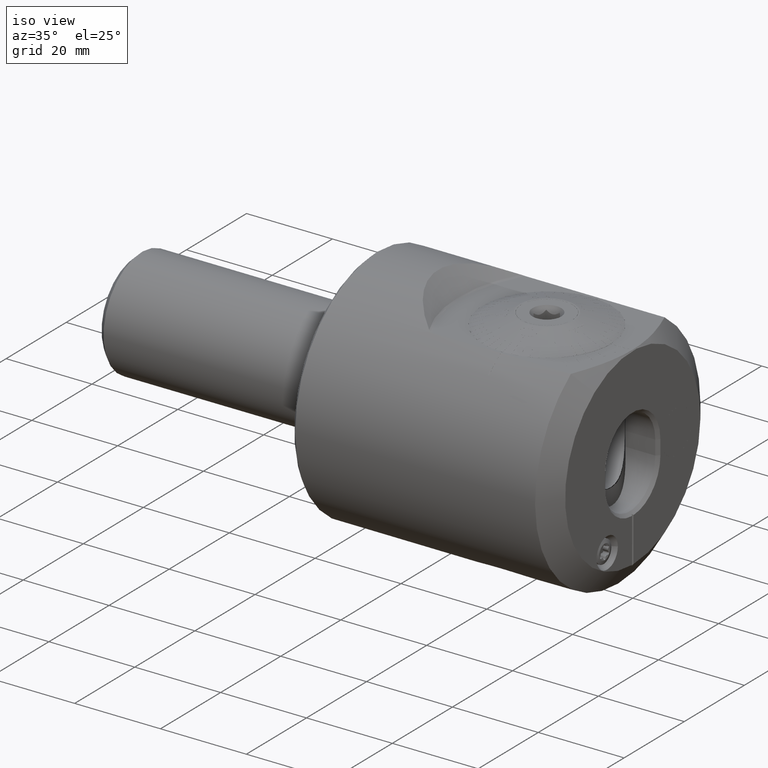
[diagram: clean part render]
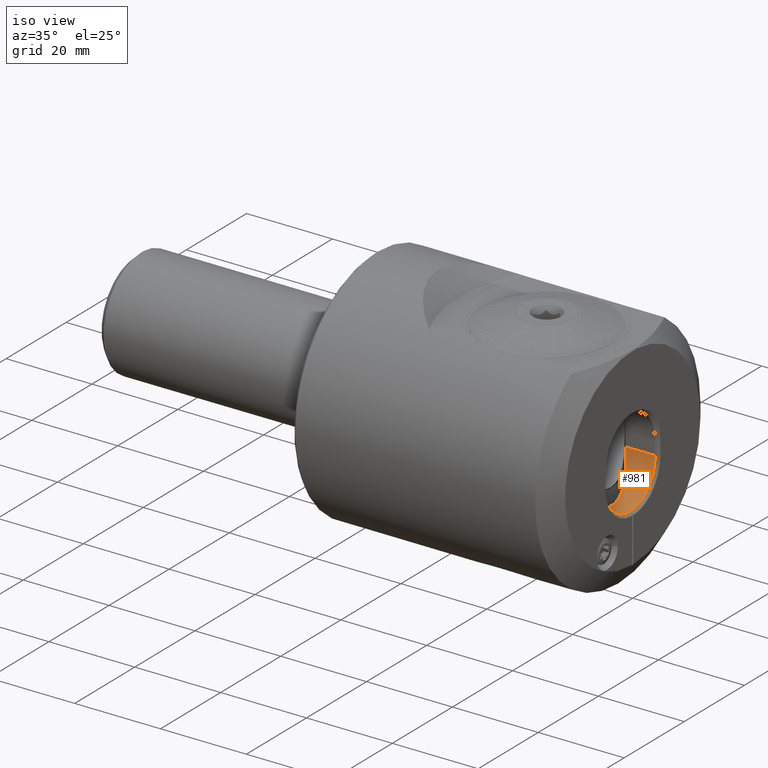
[diagram: same view with one face highlighted and labeled with its STEP entity id]
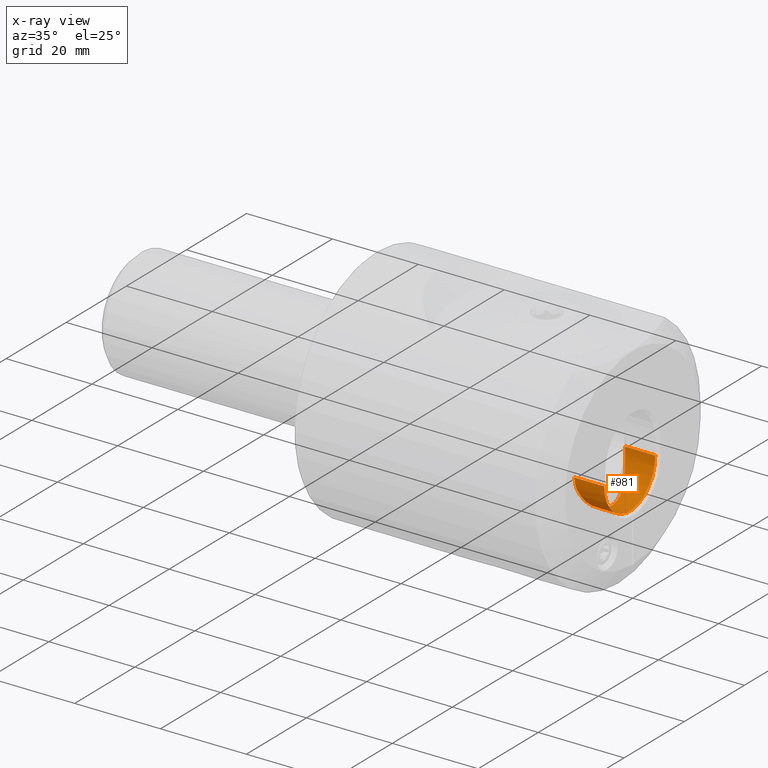
[diagram: x-ray of the same camera — body ghosted, the highlighted face saturated]
A machine part, iso view. The second image highlights one B-rep face of the part: STEP entity #981.
The next image is the same camera in x-ray: the body ghosted, the highlighted face saturated — about 0% of this face is hidden behind the body in this view.
In plain terms, the highlighted cylindrical surface (partial cylindrical patch) has radius 8.5 mm, axis along (1, 0, 0).
Its self-contained STEP definition (entity closure, byte-faithful):
#185 = CYLINDRICAL_SURFACE ( 'NONE', #19414, 8.500000000000000000 ) ;
#981 = ADVANCED_FACE ( 'NONE', ( #3211 ), #185, .F. ) ;
#1500 = CARTESIAN_POINT ( 'NONE',  ( 53.40117075658710600, 6.747549463405488400, -8.198351975443470600 ) ) ;
#1585 = CARTESIAN_POINT ( 'NONE',  ( 54.74059279892856000, 2.791099728862466400, -11.03367945595449000 ) ) ;
#1687 = CARTESIAN_POINT ( 'NONE',  ( 53.57206176861593900, -6.390315970369961500, -8.611412417995151000 ) ) ;
#1771 = CARTESIAN_POINT ( 'NONE',  ( 52.72683878815927700, -7.939979636275679400, -6.046715393019435500 ) ) ;
#1939 = CARTESIAN_POINT ( 'NONE',  ( 55.00027206658472100, -0.2706025040285277600, -11.50048011799519200 ) ) ;
#2819 = DIRECTION ( 'NONE',  ( 0.0000000000000000000, 0.0000000000000000000, -1.000000000000000000 ) ) ;
#3211 = FACE_OUTER_BOUND ( 'NONE', #18328, .T. ) ;
#3390 = CARTESIAN_POINT ( 'NONE',  ( 53.82323206110127200, 5.827685249283378600, -9.193670678484013000 ) ) ;
#3669 = CARTESIAN_POINT ( 'NONE',  ( 54.99225311586421600, -0.5594120682533374500, -11.48635356485625200 ) ) ;
#3760 = CARTESIAN_POINT ( 'NONE',  ( 54.51748811811901900, -3.810697035712705000, -10.61846142714232300 ) ) ;
#5476 = CARTESIAN_POINT ( 'NONE',  ( 52.35920709430826000, 8.500000000000007100, -3.575560511615871300 ) ) ;
#5775 = ORIENTED_EDGE ( 'NONE', *, *, #24549, .T. ) ;
#5841 = CARTESIAN_POINT ( 'NONE',  ( 54.87199555768153700, 1.975100448569495400, -11.27214813610329500 ) ) ;
#5929 = CARTESIAN_POINT ( 'NONE',  ( 54.83552870669618800, -2.232003087667064900, -11.20656592130414000 ) ) ;
#6027 = CARTESIAN_POINT ( 'NONE',  ( 54.99943430834281300, 0.5852534294682921700, -11.49900171960026700 ) ) ;
#6288 = VECTOR ( 'NONE', #24033, 1000.000000000000000 ) ;
#6453 = VECTOR ( 'NONE', #27130, 1000.000000000000000 ) ;
#6645 = VERTEX_POINT ( 'NONE', #22135 ) ;
#7045 = CARTESIAN_POINT ( 'NONE',  ( 4.999999999999997300, -8.499999999999992900, -3.000000000000001300 ) ) ;
#8035 = CARTESIAN_POINT ( 'NONE',  ( 54.37804569679813900, 4.301358800208545200, -10.35182497924006000 ) ) ;
#8319 = CARTESIAN_POINT ( 'NONE',  ( 54.69151914056685400, -3.037924230751477300, -10.94349469515302600 ) ) ;
#8410 = CARTESIAN_POINT ( 'NONE',  ( 54.96644850501578400, 1.146522457375754400, -11.44116772283548800 ) ) ;
#9262 = DIRECTION ( 'NONE',  ( 1.000000000000000000, -0.0000000000000000000, -0.0000000000000000000 ) ) ;
#9687 = B_SPLINE_CURVE_WITH_KNOTS ( 'NONE', 3,
 ( #25078, #5476, #22685, #12169, #9925, #27153, #14328, #1500, #11998, #3390, #18433, #14882, #14519, #8035, #18694, #21228, #1585, #14609, #5841, #8410, #6027, #1939, #3669, #10292, #20867, #20959, #5929, #25250, #8319, #3760, #27599, #16749, #25442, #21138, #12454, #12641, #1687, #23134, #27425, #18970, #27511, #1771, #18790, #23302, #14795, #27332, #16841, #19060 ),
 .UNSPECIFIED., .F., .F.,
 ( 4, 2, 2, 2, 2, 2, 2, 2, 2, 2, 2, 2, 2, 2, 2, 2, 2, 2, 2, 2, 2, 2, 2, 4 ),
 ( 0.0000000000000000000, 0.001698183781830400600, 0.003396367563660801200, 0.005094551345491201700, 0.006792735127321605800, 0.007641827018236806500, 0.008490918909152007200, 0.01018910269098240700, 0.01103819458189760800, 0.01188728647281281000, 0.01358547025464321200, 0.01443456214555841100, 0.01528365403647361300, 0.01613274592738881200, 0.01698183781830401400, 0.01868002160013441600, 0.01952911349104961500, 0.02037820538196481400, 0.02122729727288001600, 0.02207638916379521500, 0.02377457294562562700, 0.02462366483654083700, 0.02547275672745604600, 0.02717094050928646500 ),
 .UNSPECIFIED. ) ;
#9925 = CARTESIAN_POINT ( 'NONE',  ( 52.65920938075344500, 8.050320160795992700, -5.783623207497343300 ) ) ;
#10292 = CARTESIAN_POINT ( 'NONE',  ( 54.96034894219909000, -1.126301416091632500, -11.42986262106126300 ) ) ;
#10519 = LINE ( 'NONE', #18498, #6453 ) ;
#10890 = ORIENTED_EDGE ( 'NONE', *, *, #16392, .F. ) ;
#11393 = CARTESIAN_POINT ( 'NONE',  ( 52.35920709430826700, 8.500000000000003600, -2.999999999999999600 ) ) ;
#11998 = CARTESIAN_POINT ( 'NONE',  ( 53.57169528568422800, 6.401853402853767200, -8.617843034588990000 ) ) ;
#12169 = CARTESIAN_POINT ( 'NONE',  ( 52.54867036101149600, 8.218814333559571100, -5.239866988957373900 ) ) ;
#12276 = CARTESIAN_POINT ( 'NONE',  ( 59.30000000000001100, 8.500000000000003600, -2.999999999999999600 ) ) ;
#12454 = CARTESIAN_POINT ( 'NONE',  ( 53.82439980018880700, -5.824921823764406700, -9.196276958555564800 ) ) ;
#12641 = CARTESIAN_POINT ( 'NONE',  ( 53.65661865817591500, -6.208100427150693400, -8.812318942255736000 ) ) ;
#13477 = EDGE_CURVE ( 'NONE', #6645, #15879, #21075, .T. ) ;
#13622 = ORIENTED_EDGE ( 'NONE', *, *, #13477, .T. ) ;
#13782 = CARTESIAN_POINT ( 'NONE',  ( 59.30000000000001100, -8.499999999999992900, -3.000000000000001300 ) ) ;
#14328 = CARTESIAN_POINT ( 'NONE',  ( 53.07426131540236700, 7.361011646837893900, -7.285766507501034700 ) ) ;
#14519 = CARTESIAN_POINT ( 'NONE',  ( 54.15000870864908200, 4.983445087686981800, -9.891337284691985600 ) ) ;
#14609 = CARTESIAN_POINT ( 'NONE',  ( 54.83282326579745100, 2.250037272113062600, -11.20168126493485300 ) ) ;
#14795 = CARTESIAN_POINT ( 'NONE',  ( 52.51279494682025700, -8.272519485686824900, -4.973725436768694100 ) ) ;
#14882 = CARTESIAN_POINT ( 'NONE',  ( 54.06978624207567900, 5.205022115869932800, -9.725519539574818900 ) ) ;
#15879 = VERTEX_POINT ( 'NONE', #13782 ) ;
#16392 = EDGE_CURVE ( 'NONE', #16637, #25212, #10519, .T. ) ;
#16637 = VERTEX_POINT ( 'NONE', #11393 ) ;
#16749 = CARTESIAN_POINT ( 'NONE',  ( 54.15100158954678000, -4.980677150857754800, -9.893384364525386900 ) ) ;
#16792 = DIRECTION ( 'NONE',  ( 0.0000000000000000000, 0.0000000000000000000, -1.000000000000000000 ) ) ;
#16841 = CARTESIAN_POINT ( 'NONE',  ( 52.35920709430826700, -8.499999999999989300, -3.576236645484122300 ) ) ;
#16896 = ORIENTED_EDGE ( 'NONE', *, *, #17592, .T. ) ;
#17592 = EDGE_CURVE ( 'NONE', #15879, #25212, #27758, .T. ) ;
#18328 = EDGE_LOOP ( 'NONE', ( #13622, #16896, #10890, #5775 ) ) ;
#18433 = CARTESIAN_POINT ( 'NONE',  ( 53.90648443868391100, 5.626795773887625500, -9.376836019756050100 ) ) ;
#18473 = CARTESIAN_POINT ( 'NONE',  ( 59.30000000000001100, 7.347880794884118400E-015, -2.999999999999999600 ) ) ;
#18498 = CARTESIAN_POINT ( 'NONE',  ( 4.999999999999997300, 8.500000000000003600, -2.999999999999999600 ) ) ;
#18694 = CARTESIAN_POINT ( 'NONE',  ( 54.51495838910319200, 3.819697176468659400, -10.61362310211410800 ) ) ;
#18790 = CARTESIAN_POINT ( 'NONE',  ( 52.66665209392010600, -8.035278428674990500, -5.786224232829446200 ) ) ;
#18970 = CARTESIAN_POINT ( 'NONE',  ( 53.07492584947900100, -7.359795810711515800, -7.287691283042971000 ) ) ;
#19009 = DIRECTION ( 'NONE',  ( 1.000000000000000000, 0.0000000000000000000, 0.0000000000000000000 ) ) ;
#19060 = CARTESIAN_POINT ( 'NONE',  ( 52.35920709430828900, -8.499999999999982200, -3.000000000000002700 ) ) ;
#19414 = AXIS2_PLACEMENT_3D ( 'NONE', #22106, #9262, #2819 ) ;
#20867 = CARTESIAN_POINT ( 'NONE',  ( 54.93653466963063200, -1.406170995548915700, -11.38762245908383100 ) ) ;
#20959 = CARTESIAN_POINT ( 'NONE',  ( 54.87412576220621900, -1.959022107040773000, -11.27597485308988100 ) ) ;
#21075 = LINE ( 'NONE', #7045, #6288 ) ;
#21138 = CARTESIAN_POINT ( 'NONE',  ( 53.90762943654246400, -5.623960037189574400, -9.379327393513060300 ) ) ;
#21228 = CARTESIAN_POINT ( 'NONE',  ( 54.68820318857838500, 3.053721169387527000, -10.93735616152359600 ) ) ;
#21950 = AXIS2_PLACEMENT_3D ( 'NONE', #18473, #19009, #16792 ) ;
#22106 = CARTESIAN_POINT ( 'NONE',  ( 4.999999999999997300, 7.347880794884118400E-015, -2.999999999999999600 ) ) ;
#22135 = CARTESIAN_POINT ( 'NONE',  ( 52.35920709430828900, -8.499999999999982200, -3.000000000000002700 ) ) ;
#22685 = CARTESIAN_POINT ( 'NONE',  ( 52.39949726333680500, 8.442186002177161100, -4.138160218242255400 ) ) ;
#23134 = CARTESIAN_POINT ( 'NONE',  ( 53.40373485231324900, -6.736237144071998800, -8.191068932774856000 ) ) ;
#23302 = CARTESIAN_POINT ( 'NONE',  ( 52.55963294333893300, -8.201548330854114600, -5.250188853985332700 ) ) ;
#24033 = DIRECTION ( 'NONE',  ( 1.000000000000000000, -0.0000000000000000000, -0.0000000000000000000 ) ) ;
#24549 = EDGE_CURVE ( 'NONE', #16637, #6645, #9687, .T. ) ;
#25078 = CARTESIAN_POINT ( 'NONE',  ( 52.35920709430826700, 8.500000000000003600, -2.999999999999999600 ) ) ;
#25212 = VERTEX_POINT ( 'NONE', #12276 ) ;
#25250 = CARTESIAN_POINT ( 'NONE',  ( 54.74433647913682700, -2.771153474738767400, -11.04053918736231300 ) ) ;
#25442 = CARTESIAN_POINT ( 'NONE',  ( 54.07075769048376700, -5.202389937305723900, -9.727546613272299000 ) ) ;
#27130 = DIRECTION ( 'NONE',  ( 1.000000000000000000, -0.0000000000000000000, -0.0000000000000000000 ) ) ;
#27153 = CARTESIAN_POINT ( 'NONE',  ( 52.92194090871933600, 7.621461801297750900, -6.803883918312363800 ) ) ;
#27332 = CARTESIAN_POINT ( 'NONE',  ( 52.39961797429180700, -8.442034007309827000, -4.141378457256200500 ) ) ;
#27425 = CARTESIAN_POINT ( 'NONE',  ( 53.31955913696791800, -6.900682175191071200, -7.970493762747579100 ) ) ;
#27511 = CARTESIAN_POINT ( 'NONE',  ( 52.92314960271850300, -7.619384030407536200, -6.807622911910661000 ) ) ;
#27599 = CARTESIAN_POINT ( 'NONE',  ( 54.37988317401563200, -4.295453803195989900, -10.35545023348316100 ) ) ;
#27758 = CIRCLE ( 'NONE', #21950, 8.500000000000000000 ) ;